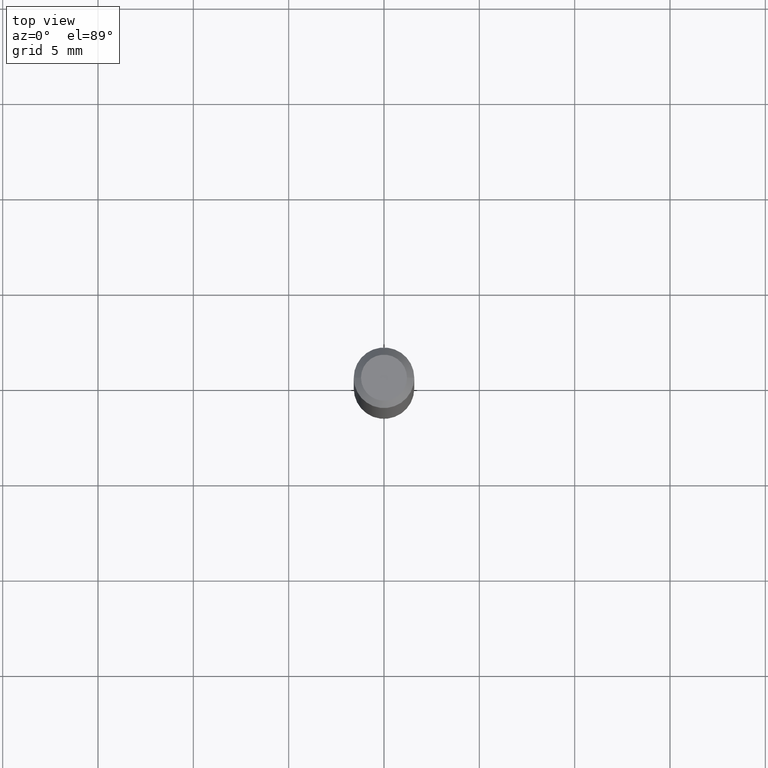
[diagram: clean part render]
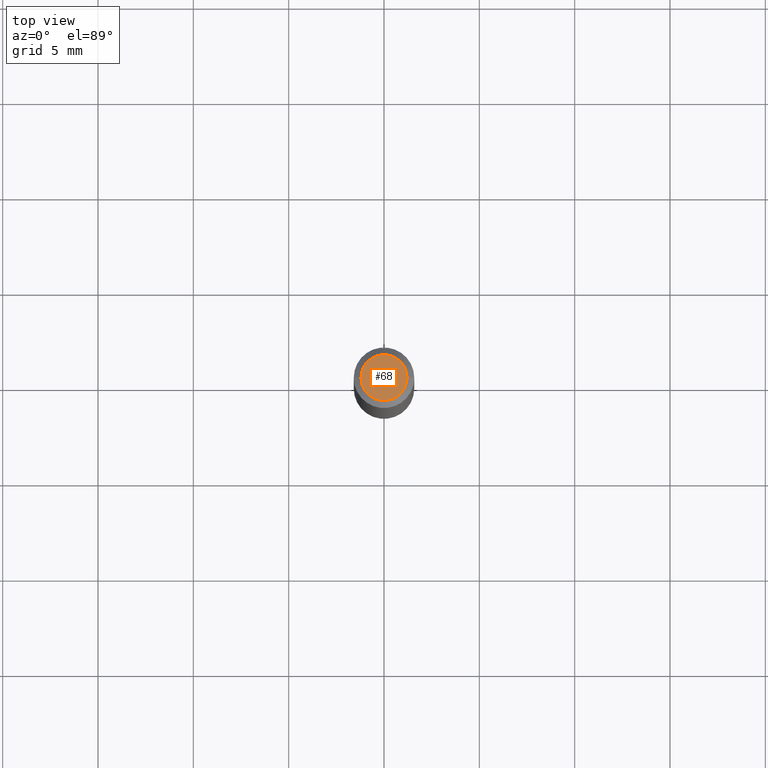
[diagram: same view with one face highlighted and labeled with its STEP entity id]
A machine part, top view. The second image highlights one B-rep face of the part: STEP entity #68.
In plain terms, the highlighted planar face has unit normal (0, -0, -1).
Its self-contained STEP definition (entity closure, byte-faithful):
#51 = CIRCLE ( 'NONE', #387, 0.04749999999999999362 ) ;
#68 = ADVANCED_FACE ( 'NONE', ( #329 ), #258, .F. ) ;
#76 = AXIS2_PLACEMENT_3D ( 'NONE', #378, #291, #368 ) ;
#82 = ORIENTED_EDGE ( 'NONE', *, *, #315, .T. ) ;
#103 = DIRECTION ( 'NONE',  ( 2.438088387897960049E-29, -3.491481338843145188E-15, -1.000000000000000000 ) ) ;
#125 = VERTEX_POINT ( 'NONE', #371 ) ;
#138 = CARTESIAN_POINT ( 'NONE',  ( 3.316907271900976096E-16, 0.04749999999999999362, -1.264584670729918775E-16 ) ) ;
#160 = EDGE_CURVE ( 'NONE', #125, #351, #51, .T. ) ;
#176 = CARTESIAN_POINT ( 'NONE',  ( -1.926388536342670348E-45, 2.750372284034196662E-31, 7.877379304411503798E-17 ) ) ;
#249 = DIRECTION ( 'NONE',  ( -2.445468806185136597E-29, 3.491481338843145583E-15, 1.000000000000000000 ) ) ;
#258 = PLANE ( 'NONE',  #383 ) ;
#287 = CIRCLE ( 'NONE', #76, 0.04749999999999999362 ) ;
#291 = DIRECTION ( 'NONE',  ( -2.445468806185136597E-29, 3.491481338843145583E-15, 1.000000000000000000 ) ) ;
#315 = EDGE_CURVE ( 'NONE', #351, #125, #287, .T. ) ;
#329 = FACE_OUTER_BOUND ( 'NONE', #465, .T. ) ;
#347 = ORIENTED_EDGE ( 'NONE', *, *, #160, .T. ) ;
#351 = VERTEX_POINT ( 'NONE', #446 ) ;
#368 = DIRECTION ( 'NONE',  ( 1.000000000000000000, -6.982962677686267499E-15, 4.884662768193073002E-29 ) ) ;
#371 = CARTESIAN_POINT ( 'NONE',  ( 0.04749999999999999362, -4.035134999187576651E-16, 7.877379304411762643E-17 ) ) ;
#376 = DIRECTION ( 'NONE',  ( -1.000000000000000000, 6.982962677686265922E-15, -4.876176775795935793E-29 ) ) ;
#378 = CARTESIAN_POINT ( 'NONE',  ( -1.926388536342670348E-45, 2.750372284034196662E-31, 7.877379304411503798E-17 ) ) ;
#383 = AXIS2_PLACEMENT_3D ( 'NONE', #138, #103, #376 ) ;
#387 = AXIS2_PLACEMENT_3D ( 'NONE', #176, #249, #402 ) ;
#402 = DIRECTION ( 'NONE',  ( 1.000000000000000000, -6.982962677686267499E-15, 4.884662768193073002E-29 ) ) ;
#446 = CARTESIAN_POINT ( 'NONE',  ( -0.04749999999999999362, 3.578768372314211492E-16, 7.877379304411263442E-17 ) ) ;
#465 = EDGE_LOOP ( 'NONE', ( #82, #347 ) ) ;